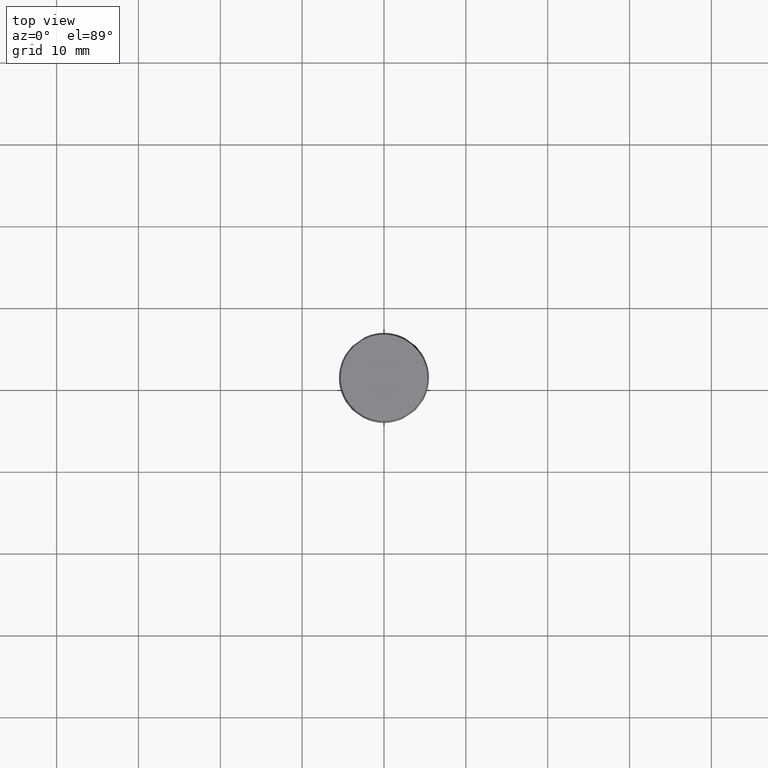
[diagram: clean part render]
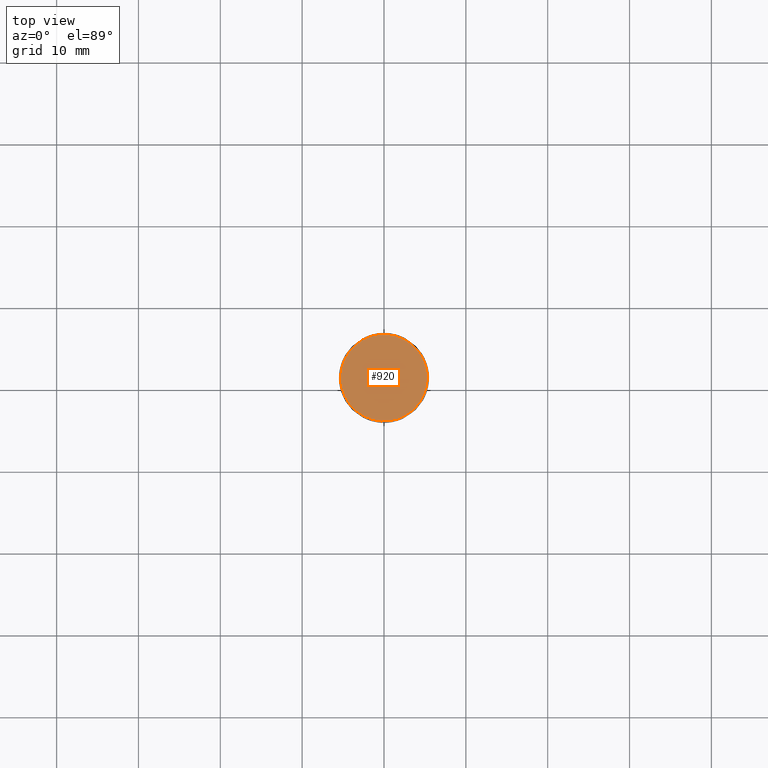
[diagram: same view with one face highlighted and labeled with its STEP entity id]
A machine part, top view. The second image highlights one B-rep face of the part: STEP entity #920.
In plain terms, the highlighted face is a freeform B-spline surface patch.
Its self-contained STEP definition (entity closure, byte-faithful):
#874=CARTESIAN_POINT('',(-5.291502000000000,0.0,88.000007999999895));
#875=VERTEX_POINT('',#874);
#876=CARTESIAN_POINT('',(5.291502000000000,0.0,88.000007999999895));
#877=VERTEX_POINT('',#876);
#878=CARTESIAN_POINT('',(-5.291502000000000,0.0,88.000007999999895));
#879=CARTESIAN_POINT('',(-5.291502000000000,5.291502000000000,88.000007999999895));
#880=CARTESIAN_POINT('',(0.0,5.291502000000000,88.000007999999895));
#881=CARTESIAN_POINT('',(5.291502000000000,5.291502000000000,88.000007999999895));
#882=CARTESIAN_POINT('',(5.291502000000000,0.0,88.000007999999895));
#890=(BOUNDED_CURVE()B_SPLINE_CURVE(2,(#878,#879,#880,#881,#882),.UNSPECIFIED.,.F.,.U.)B_SPLINE_CURVE_WITH_KNOTS((3,2,3),(0.0,0.250000000000000,0.500000000000000),.UNSPECIFIED.)CURVE()GEOMETRIC_REPRESENTATION_ITEM()RATIONAL_B_SPLINE_CURVE((1.0,0.707106781186548,1.0,0.707106781186548,1.0))REPRESENTATION_ITEM(''));
#891=EDGE_CURVE('',#875,#877,#890,.T.);
#893=CARTESIAN_POINT('',(5.291502000000000,0.0,88.000007999999895));
#894=CARTESIAN_POINT('',(5.291502000000000,-5.291502000000000,88.000007999999895));
#895=CARTESIAN_POINT('',(0.0,-5.291502000000000,88.000007999999895));
#896=CARTESIAN_POINT('',(-5.291502000000000,-5.291502000000000,88.000007999999895));
#897=CARTESIAN_POINT('',(-5.291502000000000,0.0,88.000007999999895));
#905=(BOUNDED_CURVE()B_SPLINE_CURVE(2,(#893,#894,#895,#896,#897),.UNSPECIFIED.,.F.,.U.)B_SPLINE_CURVE_WITH_KNOTS((3,2,3),(0.500000000000000,0.750000000000000,1.0),.UNSPECIFIED.)CURVE()GEOMETRIC_REPRESENTATION_ITEM()RATIONAL_B_SPLINE_CURVE((1.0,0.707106781186548,1.0,0.707106781186548,1.0))REPRESENTATION_ITEM(''));
#906=EDGE_CURVE('',#877,#875,#905,.T.);
#911=CARTESIAN_POINT('',(5.820123029288085,-5.820123029288009,88.000007999999895));
#912=CARTESIAN_POINT('',(-5.820123313146373,-5.820123029288009,88.000007999999895));
#913=CARTESIAN_POINT('',(5.820123029288085,5.820123313146296,88.000007999999895));
#914=CARTESIAN_POINT('',(-5.820123313146373,5.820123313146296,88.000007999999895));
#915=B_SPLINE_SURFACE_WITH_KNOTS('',1,1,((#911,#913),(#912,#914)),.UNSPECIFIED.,.F.,.F.,.U.,(2,2),(2,2),(0.0,11.640246342434461),(0.0,11.640246342434310),.UNSPECIFIED.);
#916=ORIENTED_EDGE('',*,*,#906,.F.);
#917=ORIENTED_EDGE('',*,*,#891,.F.);
#918=EDGE_LOOP('',(#916,#917));
#919=FACE_OUTER_BOUND('',#918,.T.);
#920=ADVANCED_FACE('',(#919),#915,.F.);